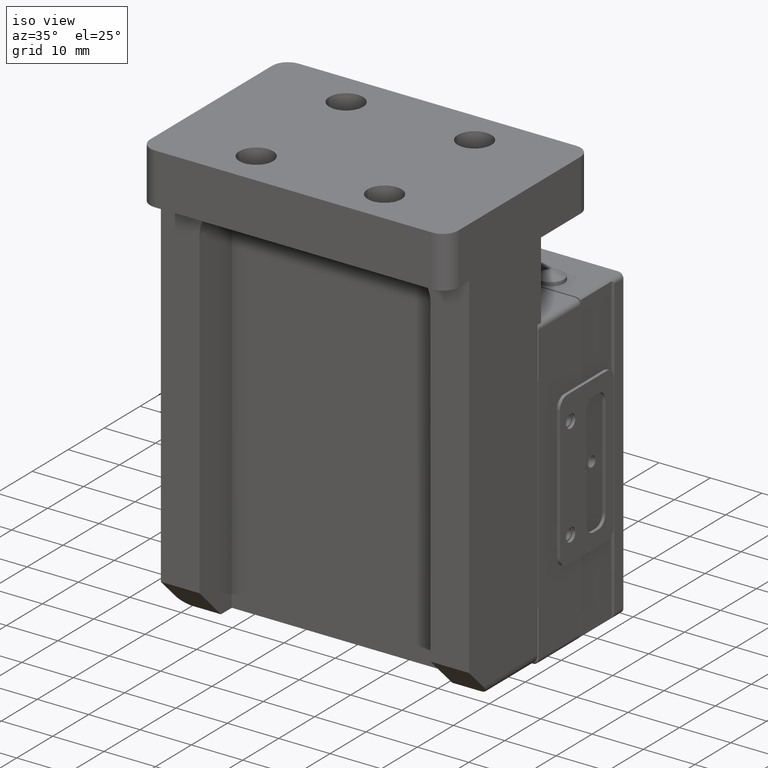
[diagram: clean part render]
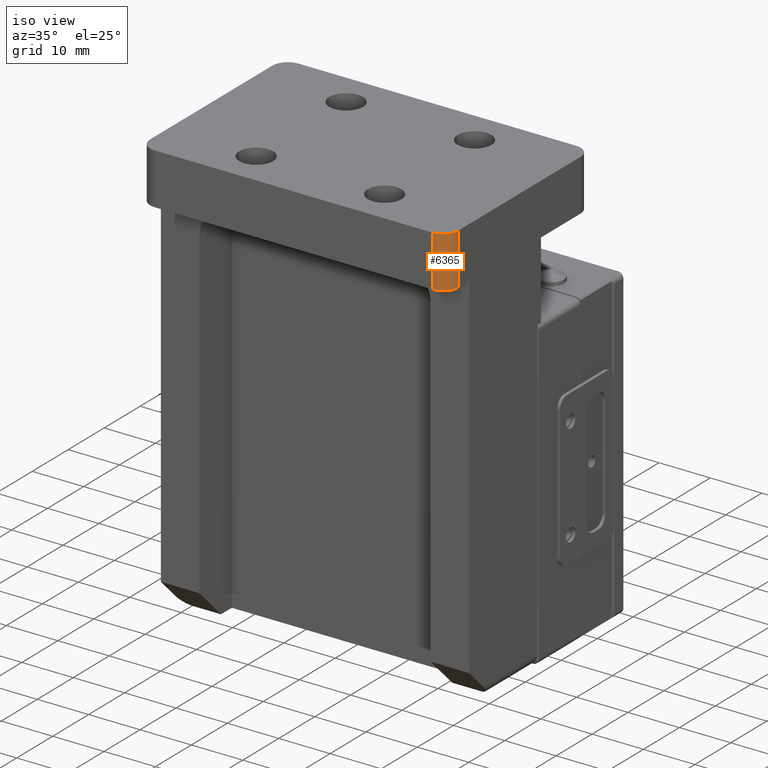
[diagram: same view with one face highlighted and labeled with its STEP entity id]
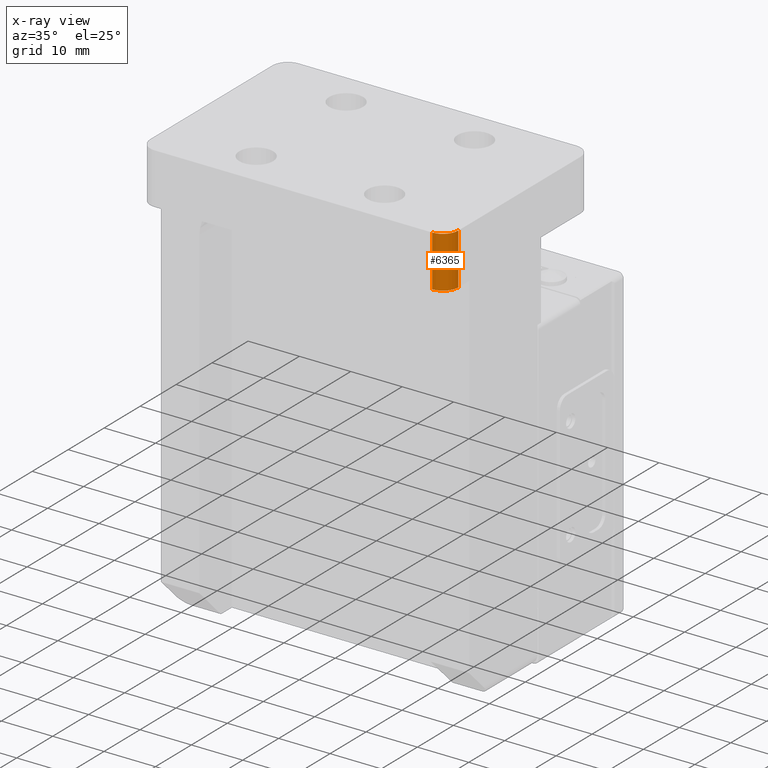
[diagram: x-ray of the same camera — body ghosted, the highlighted face saturated]
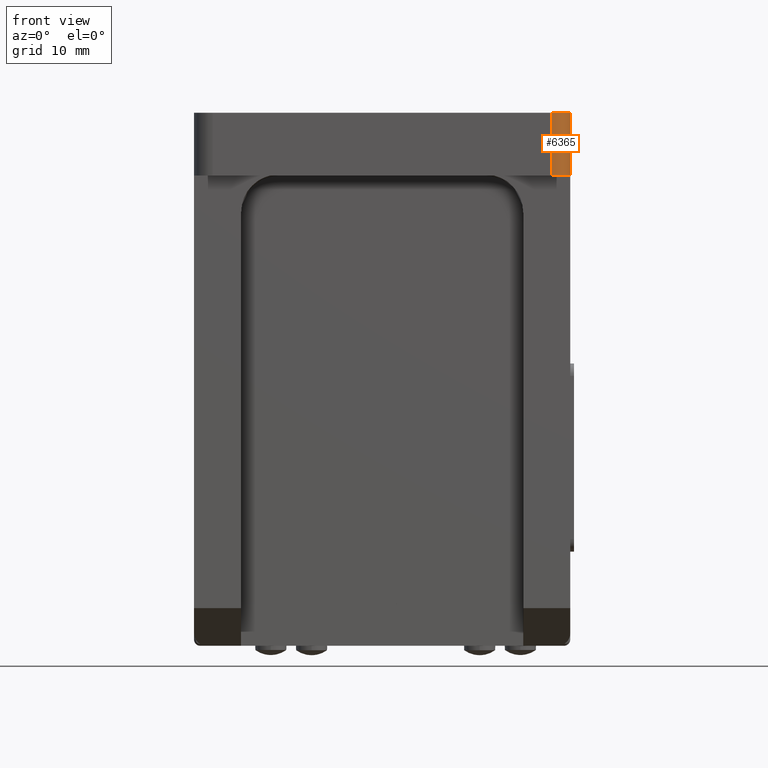
[diagram: same view with one face highlighted and labeled with its STEP entity id]
A machine part, iso view. The second image highlights one B-rep face of the part: STEP entity #6365.
The next image is the same camera in x-ray: the body ghosted, the highlighted face saturated — about 0% of this face is hidden behind the body in this view.
A second angle (front view) of the same face is appended — the face is thin or edge-on in the first view.
In plain terms, the highlighted cylindrical surface (edge-blend (fillet) strip) has radius 3 mm, axis along (-0, 0, 1).
Its self-contained STEP definition (entity closure, byte-faithful):
#725 = DIRECTION ( 'NONE',  ( 1.224510688924804848E-16, -1.000000000000000000, 0.000000000000000000 ) ) ;
#780 = DIRECTION ( 'NONE',  ( 1.000000000000000000, 5.782411586589358625E-16, 0.000000000000000000 ) ) ;
#3662 = ORIENTED_EDGE ( 'NONE', *, *, #5890, .F. ) ;
#4827 = VERTEX_POINT ( 'NONE', #15738 ) ;
#5890 = EDGE_CURVE ( 'NONE', #23173, #13088, #22295, .T. ) ;
#6017 = AXIS2_PLACEMENT_3D ( 'NONE', #25099, #22026, #16914 ) ;
#6365 = ADVANCED_FACE ( 'NONE', ( #17909 ), #9178, .T. ) ;
#6986 = DIRECTION ( 'NONE',  ( 1.224510688924804848E-16, -1.000000000000000000, 0.000000000000000000 ) ) ;
#9178 = CYLINDRICAL_SURFACE ( 'NONE', #16494, 2.999999999999999112 ) ;
#9533 = DIRECTION ( 'NONE',  ( 1.000000000000000000, 1.224510688924804848E-16, 0.000000000000000000 ) ) ;
#9854 = CARTESIAN_POINT ( 'NONE',  ( -17.00000000000000000, 10.00000000000000888, -27.00000000000000000 ) ) ;
#11535 = EDGE_CURVE ( 'NONE', #4827, #35650, #29395, .T. ) ;
#13088 = VERTEX_POINT ( 'NONE', #35376 ) ;
#13360 = ORIENTED_EDGE ( 'NONE', *, *, #11535, .F. ) ;
#13451 = LINE ( 'NONE', #18555, #28137 ) ;
#15738 = CARTESIAN_POINT ( 'NONE',  ( -17.00000000000000000, 10.00000000000000888, -30.00000000000000000 ) ) ;
#15851 = ORIENTED_EDGE ( 'NONE', *, *, #26996, .F. ) ;
#16494 = AXIS2_PLACEMENT_3D ( 'NONE', #20808, #6986, #9533 ) ;
#16914 = DIRECTION ( 'NONE',  ( 1.000000000000000000, 1.214306433183765213E-16, 0.000000000000000000 ) ) ;
#17909 = FACE_OUTER_BOUND ( 'NONE', #31080, .T. ) ;
#18555 = CARTESIAN_POINT ( 'NONE',  ( -17.00000000000000711, 85.00000000000000000, -30.00000000000000000 ) ) ;
#19481 = LINE ( 'NONE', #30580, #29785 ) ;
#20808 = CARTESIAN_POINT ( 'NONE',  ( -17.00000000000000000, -2.081668171172168513E-15, -27.00000000000000000 ) ) ;
#21711 = ORIENTED_EDGE ( 'NONE', *, *, #32579, .F. ) ;
#22026 = DIRECTION ( 'NONE',  ( 1.214306433183764966E-16, -1.000000000000000000, 0.000000000000000000 ) ) ;
#22295 = CIRCLE ( 'NONE', #6017, 2.999999999999999112 ) ;
#23173 = VERTEX_POINT ( 'NONE', #30026 ) ;
#25099 = CARTESIAN_POINT ( 'NONE',  ( -17.00000000000000000, 3.642919299551290461E-16, -27.00000000000000000 ) ) ;
#26414 = DIRECTION ( 'NONE',  ( -2.891205793294685229E-16, 1.000000000000000000, -0.000000000000000000 ) ) ;
#26918 = DIRECTION ( 'NONE',  ( -1.224510688924804848E-16, 1.000000000000000000, -0.000000000000000000 ) ) ;
#26996 = EDGE_CURVE ( 'NONE', #35650, #23173, #19481, .T. ) ;
#28137 = VECTOR ( 'NONE', #26918, 1000.000000000000000 ) ;
#29395 = CIRCLE ( 'NONE', #34031, 2.999999999999999112 ) ;
#29785 = VECTOR ( 'NONE', #725, 1000.000000000000000 ) ;
#30026 = CARTESIAN_POINT ( 'NONE',  ( -20.00000000000000000, 0.000000000000000000, -27.00000000000000000 ) ) ;
#30580 = CARTESIAN_POINT ( 'NONE',  ( -20.00000000000000000, -2.449021377849609598E-15, -27.00000000000000000 ) ) ;
#31080 = EDGE_LOOP ( 'NONE', ( #13360, #21711, #3662, #15851 ) ) ;
#32579 = EDGE_CURVE ( 'NONE', #13088, #4827, #13451, .T. ) ;
#33773 = CARTESIAN_POINT ( 'NONE',  ( -19.99999999999999645, 10.00000000000000711, -26.99999999999999645 ) ) ;
#34031 = AXIS2_PLACEMENT_3D ( 'NONE', #9854, #26414, #780 ) ;
#35376 = CARTESIAN_POINT ( 'NONE',  ( -17.00000000000000355, 3.642919299551294405E-16, -30.00000000000000000 ) ) ;
#35650 = VERTEX_POINT ( 'NONE', #33773 ) ;